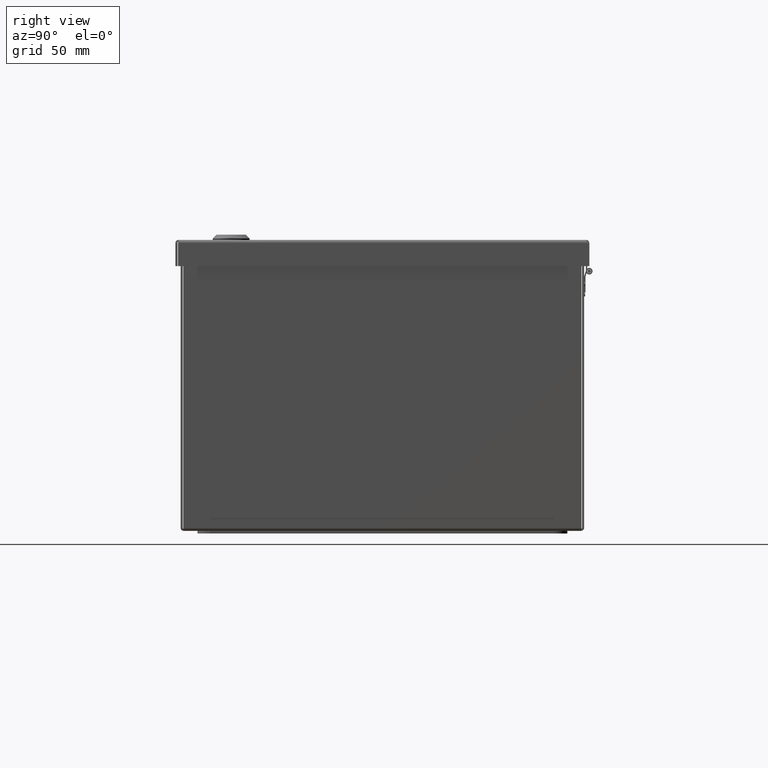
[diagram: clean part render]
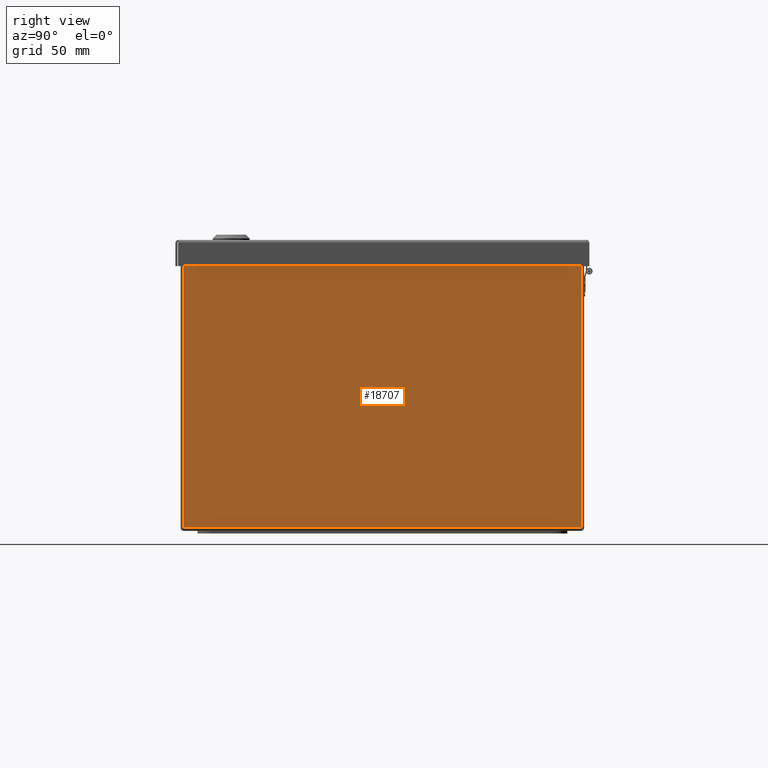
[diagram: same view with one face highlighted and labeled with its STEP entity id]
A machine part, right view. The second image highlights one B-rep face of the part: STEP entity #18707.
In plain terms, the highlighted planar face has unit normal (-1, 0, -0).
Its self-contained STEP definition (entity closure, byte-faithful):
#325 = ORIENTED_EDGE ( 'NONE', *, *, #43794, .F. ) ;
#2125 = ORIENTED_EDGE ( 'NONE', *, *, #33963, .F. ) ;
#2396 = VECTOR ( 'NONE', #6749, 39.37007874015748143 ) ;
#5783 = ORIENTED_EDGE ( 'NONE', *, *, #30181, .F. ) ;
#6562 = LINE ( 'NONE', #14711, #35313 ) ;
#6749 = DIRECTION ( 'NONE',  ( 1.172598020195119740E-15, -8.483830530972219345E-15, -1.000000000000000000 ) ) ;
#8978 = EDGE_CURVE ( 'NONE', #43566, #35430, #23651, .T. ) ;
#10003 = CARTESIAN_POINT ( 'NONE',  ( 3.999999999999931166, -7.920990097422643927, -1.298552050588993589 ) ) ;
#10394 = VERTEX_POINT ( 'NONE', #39977 ) ;
#13403 = CARTESIAN_POINT ( 'NONE',  ( 3.999999999999969358, -1.998899999999375510, -5.220250000000944191 ) ) ;
#14711 = CARTESIAN_POINT ( 'NONE',  ( 3.999999999999959588, -1.998899999999310229, 2.593249999999057032 ) ) ;
#14929 = AXIS2_PLACEMENT_3D ( 'NONE', #39720, #42990, #16423 ) ;
#15835 = CARTESIAN_POINT ( 'NONE',  ( 3.999999999999936495, -7.920990097422676790, -5.220250000000893564 ) ) ;
#16423 = DIRECTION ( 'NONE',  ( 1.172598020195119740E-15, -8.483830530972219345E-15, -1.000000000000000000 ) ) ;
#18707 = ADVANCED_FACE ( 'NONE', ( #33420 ), #22524, .F. ) ;
#22524 = PLANE ( 'NONE',  #14929 ) ;
#23651 = LINE ( 'NONE', #10003, #27884 ) ;
#23728 = CARTESIAN_POINT ( 'NONE',  ( 3.999999999999994671, 3.923190097423956857, -1.298552050589093954 ) ) ;
#25221 = ORIENTED_EDGE ( 'NONE', *, *, #8978, .F. ) ;
#27779 = VERTEX_POINT ( 'NONE', #35159 ) ;
#27884 = VECTOR ( 'NONE', #30750, 39.37007874015748143 ) ;
#30181 = EDGE_CURVE ( 'NONE', #27779, #10394, #40137, .T. ) ;
#30750 = DIRECTION ( 'NONE',  ( -1.172598020195119740E-15, 8.483830530972219345E-15, 1.000000000000000000 ) ) ;
#33420 = FACE_OUTER_BOUND ( 'NONE', #35055, .T. ) ;
#33516 = DIRECTION ( 'NONE',  ( -5.284317631071219743E-15, -1.000000000000000000, 8.483830530972214611E-15 ) ) ;
#33963 = EDGE_CURVE ( 'NONE', #35430, #27779, #6562, .T. ) ;
#35055 = EDGE_LOOP ( 'NONE', ( #25221, #325, #5783, #2125 ) ) ;
#35159 = CARTESIAN_POINT ( 'NONE',  ( 3.999999999999988898, 3.923190097424009259, 2.593249999999006850 ) ) ;
#35313 = VECTOR ( 'NONE', #38183, 39.37007874015748143 ) ;
#35430 = VERTEX_POINT ( 'NONE', #40429 ) ;
#36415 = VECTOR ( 'NONE', #33516, 39.37007874015748143 ) ;
#38183 = DIRECTION ( 'NONE',  ( 5.281830677061919858E-15, 1.000000000000000000, -8.483830530972214611E-15 ) ) ;
#39720 = CARTESIAN_POINT ( 'NONE',  ( 3.999999999999962697, -1.998899999999343313, -1.298552050589043771 ) ) ;
#39977 = CARTESIAN_POINT ( 'NONE',  ( 4.000000000000000000, 3.923190097423923994, -5.220250000000993040 ) ) ;
#40137 = LINE ( 'NONE', #23728, #2396 ) ;
#40429 = CARTESIAN_POINT ( 'NONE',  ( 3.999999999999927613, -7.920990097422630605, 2.593249999999107214 ) ) ;
#42990 = DIRECTION ( 'NONE',  ( -1.000000000000000000, 5.281830677061909603E-15, -1.172598020195164508E-15 ) ) ;
#43293 = LINE ( 'NONE', #13403, #36415 ) ;
#43566 = VERTEX_POINT ( 'NONE', #15835 ) ;
#43794 = EDGE_CURVE ( 'NONE', #10394, #43566, #43293, .T. ) ;